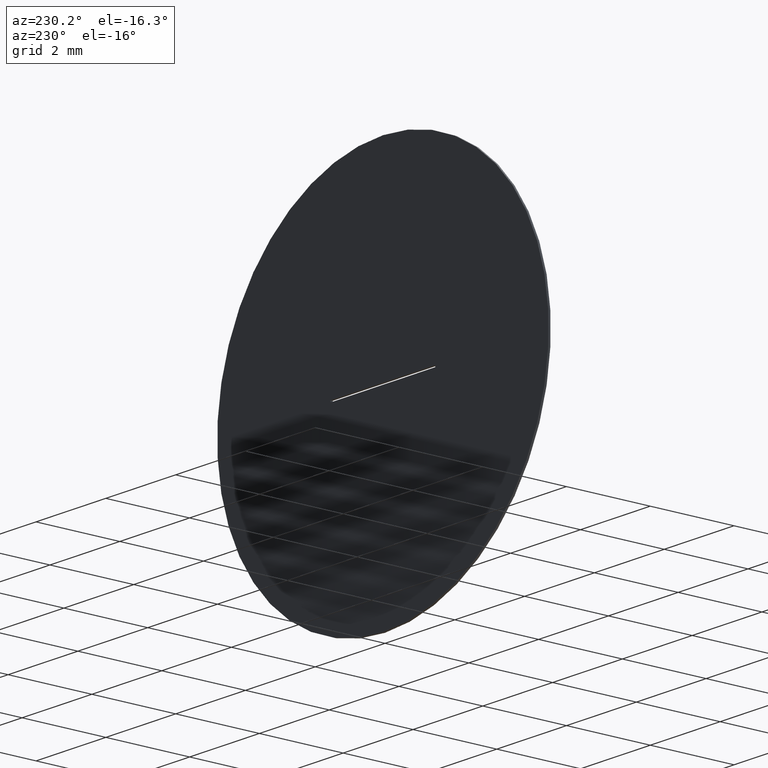
[diagram: clean part render]
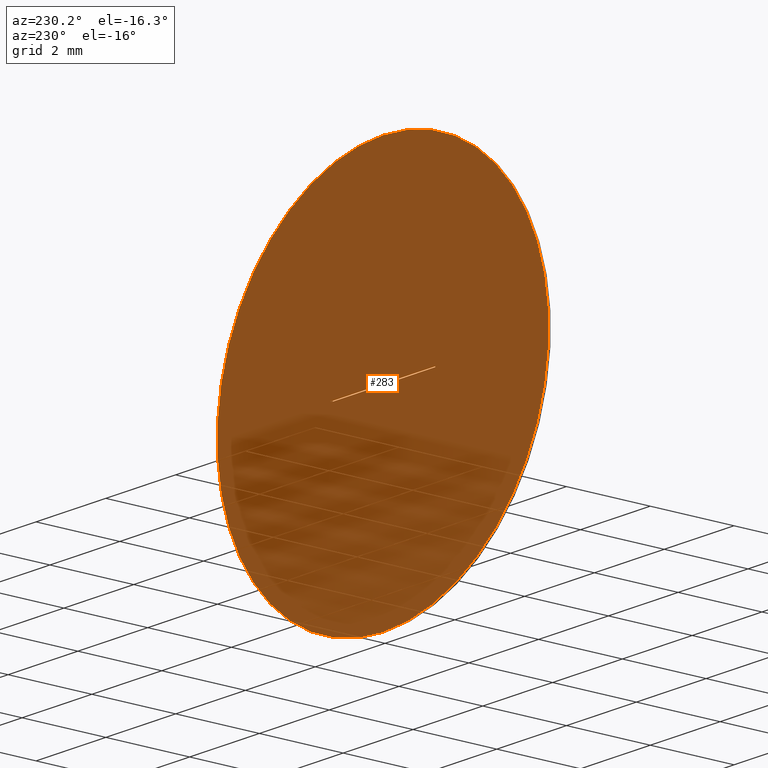
[diagram: same view with one face highlighted and labeled with its STEP entity id]
A machine part, auxiliary view. The second image highlights one B-rep face of the part: STEP entity #283.
In plain terms, the highlighted planar face has unit normal (0, 1, 0).
Its self-contained STEP definition (entity closure, byte-faithful):
#1 = VERTEX_POINT ( 'NONE', #149 ) ;
#3 = DIRECTION ( 'NONE',  ( 0.000000000000000000, 0.000000000000000000, 1.000000000000000000 ) ) ;
#5 = AXIS2_PLACEMENT_3D ( 'NONE', #64, #42, #48 ) ;
#10 = CARTESIAN_POINT ( 'NONE',  ( -1.500000000000000222, 0.05000000000000000278, -0.01999999999999999695 ) ) ;
#12 = AXIS2_PLACEMENT_3D ( 'NONE', #218, #219, #191 ) ;
#30 = LINE ( 'NONE', #216, #43 ) ;
#42 = DIRECTION ( 'NONE',  ( 0.000000000000000000, 1.000000000000000000, 0.000000000000000000 ) ) ;
#43 = VECTOR ( 'NONE', #171, 1000.000000000000000 ) ;
#48 = DIRECTION ( 'NONE',  ( 0.000000000000000000, -0.000000000000000000, 1.000000000000000000 ) ) ;
#51 = DIRECTION ( 'NONE',  ( 1.000000000000000000, 0.000000000000000000, 0.000000000000000000 ) ) ;
#64 = CARTESIAN_POINT ( 'NONE',  ( 0.000000000000000000, 0.05000000000000000278, 0.000000000000000000 ) ) ;
#70 = EDGE_CURVE ( 'NONE', #169, #138, #124, .T. ) ;
#71 = LINE ( 'NONE', #119, #217 ) ;
#75 = ORIENTED_EDGE ( 'NONE', *, *, #247, .F. ) ;
#79 = EDGE_CURVE ( 'NONE', #1, #282, #151, .T. ) ;
#80 = DIRECTION ( 'NONE',  ( 0.000000000000000000, 1.000000000000000000, 0.000000000000000000 ) ) ;
#85 = CARTESIAN_POINT ( 'NONE',  ( 1.499999999999999778, 0.05000000000000000278, -0.01999999999999999695 ) ) ;
#87 = EDGE_CURVE ( 'NONE', #138, #169, #276, .T. ) ;
#89 = ORIENTED_EDGE ( 'NONE', *, *, #293, .F. ) ;
#98 = EDGE_LOOP ( 'NONE', ( #120, #142 ) ) ;
#106 = DIRECTION ( 'NONE',  ( -1.000000000000000000, -0.000000000000000000, -0.000000000000000000 ) ) ;
#107 = VECTOR ( 'NONE', #291, 1000.000000000000000 ) ;
#112 = CARTESIAN_POINT ( 'NONE',  ( -1.500000000000000222, 0.05000000000000000278, -0.01999999999999999695 ) ) ;
#115 = EDGE_LOOP ( 'NONE', ( #75, #271, #89, #263 ) ) ;
#119 = CARTESIAN_POINT ( 'NONE',  ( -1.500000000000000222, 0.05000000000000000278, 0.02000000000000000389 ) ) ;
#120 = ORIENTED_EDGE ( 'NONE', *, *, #87, .T. ) ;
#124 = CIRCLE ( 'NONE', #156, 4.750000000000000000 ) ;
#125 = CARTESIAN_POINT ( 'NONE',  ( 0.000000000000000000, 0.05000000000000000278, 0.000000000000000000 ) ) ;
#128 = VERTEX_POINT ( 'NONE', #10 ) ;
#131 = LINE ( 'NONE', #112, #231 ) ;
#138 = VERTEX_POINT ( 'NONE', #272 ) ;
#142 = ORIENTED_EDGE ( 'NONE', *, *, #70, .T. ) ;
#149 = CARTESIAN_POINT ( 'NONE',  ( 1.499999999999999778, 0.05000000000000000278, 0.02000000000000000389 ) ) ;
#151 = LINE ( 'NONE', #295, #107 ) ;
#152 = EDGE_CURVE ( 'NONE', #128, #260, #30, .T. ) ;
#155 = CARTESIAN_POINT ( 'NONE',  ( 5.817072295949927426E-16, 0.05000000000000000278, 4.750000000000000000 ) ) ;
#156 = AXIS2_PLACEMENT_3D ( 'NONE', #125, #80, #3 ) ;
#169 = VERTEX_POINT ( 'NONE', #155 ) ;
#171 = DIRECTION ( 'NONE',  ( 0.000000000000000000, 0.000000000000000000, 1.000000000000000000 ) ) ;
#179 = FACE_OUTER_BOUND ( 'NONE', #98, .T. ) ;
#180 = PLANE ( 'NONE',  #5 ) ;
#191 = DIRECTION ( 'NONE',  ( 0.000000000000000000, 0.000000000000000000, 1.000000000000000000 ) ) ;
#200 = CARTESIAN_POINT ( 'NONE',  ( -1.500000000000000222, 0.05000000000000000278, 0.02000000000000000389 ) ) ;
#204 = FACE_BOUND ( 'NONE', #115, .T. ) ;
#216 = CARTESIAN_POINT ( 'NONE',  ( -1.500000000000000222, 0.05000000000000000278, -0.01999999999999999695 ) ) ;
#217 = VECTOR ( 'NONE', #51, 1000.000000000000000 ) ;
#218 = CARTESIAN_POINT ( 'NONE',  ( 0.000000000000000000, 0.05000000000000000278, 0.000000000000000000 ) ) ;
#219 = DIRECTION ( 'NONE',  ( 0.000000000000000000, 1.000000000000000000, 0.000000000000000000 ) ) ;
#231 = VECTOR ( 'NONE', #106, 1000.000000000000000 ) ;
#247 = EDGE_CURVE ( 'NONE', #282, #128, #131, .T. ) ;
#260 = VERTEX_POINT ( 'NONE', #200 ) ;
#263 = ORIENTED_EDGE ( 'NONE', *, *, #152, .F. ) ;
#271 = ORIENTED_EDGE ( 'NONE', *, *, #79, .F. ) ;
#272 = CARTESIAN_POINT ( 'NONE',  ( 0.000000000000000000, 0.05000000000000000278, -4.750000000000000000 ) ) ;
#276 = CIRCLE ( 'NONE', #12, 4.750000000000000000 ) ;
#282 = VERTEX_POINT ( 'NONE', #85 ) ;
#283 = ADVANCED_FACE ( 'NONE', ( #179, #204 ), #180, .T. ) ;
#291 = DIRECTION ( 'NONE',  ( -0.000000000000000000, -0.000000000000000000, -1.000000000000000000 ) ) ;
#293 = EDGE_CURVE ( 'NONE', #260, #1, #71, .T. ) ;
#295 = CARTESIAN_POINT ( 'NONE',  ( 1.499999999999999778, 0.05000000000000000278, -0.01999999999999999695 ) ) ;